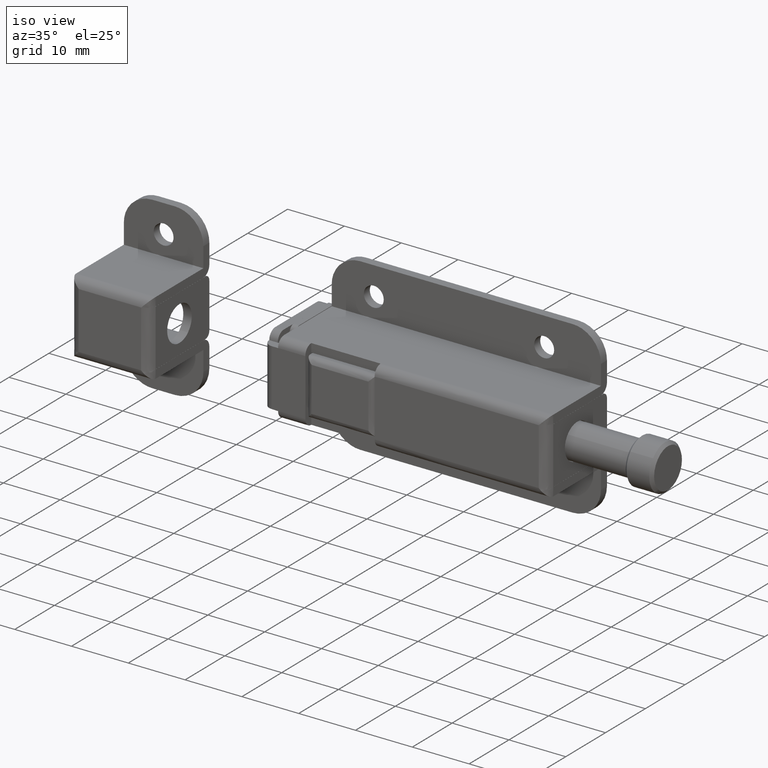
[diagram: clean part render]
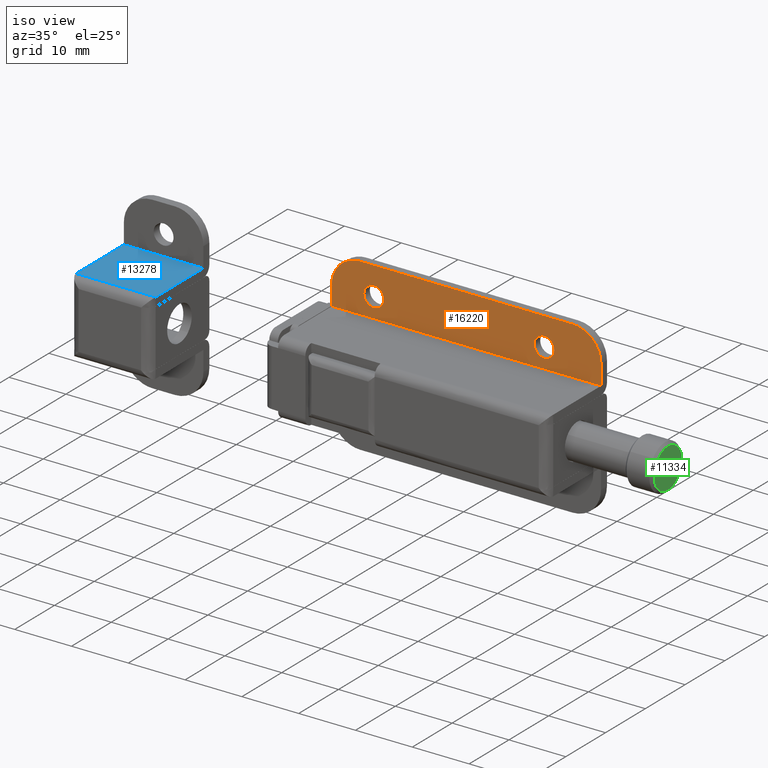
[diagram: same view with three faces highlighted in distinct colors, each labeled with its STEP entity id]
A machine part, iso view with three faces highlighted in distinct colors.
Their STEP definitions:

[orange] entity #16220 — the highlighted face is a freeform B-spline surface patch.
#13947=CARTESIAN_POINT('',(41.336222582549269,6.0,11.130048810456721));
#13948=VERTEX_POINT('',#13947);
#13954=CARTESIAN_POINT('',(40.0,6.0,11.750000000000000));
#13955=VERTEX_POINT('',#13954);
#13956=CARTESIAN_POINT('',(41.336222582549269,6.0,11.130048810456721));
#13957=CARTESIAN_POINT('',(41.183010503327282,6.000000000000007,11.311666530619711));
#13958=CARTESIAN_POINT('',(40.864713795496947,6.000000000000011,11.560719291350770));
#13959=CARTESIAN_POINT('',(40.380105216657689,5.999999999999993,11.724367188343470));
#13960=CARTESIAN_POINT('',(40.110859515660479,6.000000000000005,11.750002595390329));
#13961=CARTESIAN_POINT('',(40.0,6.0,11.750000000000000));
#13962=B_SPLINE_CURVE_WITH_KNOTS('',3,(#13956,#13957,#13958,#13959,#13960,#13961),.UNSPECIFIED.,.F.,.U.,(4,1,1,4),(0.000000017648177,0.712711155485940,1.187851294554508,1.520449608499753),.UNSPECIFIED.);
#13963=EDGE_CURVE('',#13948,#13955,#13962,.T.);
#13965=CARTESIAN_POINT('',(38.250000000000469,6.000000000000001,9.999998720376453));
#13966=VERTEX_POINT('',#13965);
#13967=CARTESIAN_POINT('',(40.0,6.0,11.750000000000000));
#13968=CARTESIAN_POINT('',(39.770879400451769,5.999999999999996,11.750253951662341));
#13969=CARTESIAN_POINT('',(39.413153448192674,6.000000000000004,11.678667294518750));
#13970=CARTESIAN_POINT('',(38.996729374777111,5.999999999999990,11.449386379077030));
#13971=CARTESIAN_POINT('',(38.702591511263101,6.000000000000013,11.195691623263180));
#13972=CARTESIAN_POINT('',(38.479181330305160,5.999999999999987,10.894447929804850));
#13973=CARTESIAN_POINT('',(38.298436537821438,6.000000000000014,10.486719330178440));
#13974=CARTESIAN_POINT('',(38.249903866427140,5.999999999999999,10.186135165694930));
#13975=CARTESIAN_POINT('',(38.250000000000469,6.000000000000001,9.999998720376453));
#13976=B_SPLINE_CURVE_WITH_KNOTS('',3,(#13967,#13968,#13969,#13970,#13971,#13972,#13973,#13974,#13975),.UNSPECIFIED.,.F.,.U.,(4,1,1,1,1,1,4),(0.000000069941797,0.687241231904349,1.073831523810168,1.417426327827615,1.846958785914374,2.190584153080336,2.748963273822484),.UNSPECIFIED.);
#13977=EDGE_CURVE('',#13955,#13966,#13976,.T.);
#13979=CARTESIAN_POINT('',(40.0,6.0,8.250000000000000));
#13980=VERTEX_POINT('',#13979);
#13981=CARTESIAN_POINT('',(38.250000000000469,6.000000000000001,9.999998720376453));
#13982=CARTESIAN_POINT('',(38.249775148579687,5.999999999999997,9.770884047734940));
#13983=CARTESIAN_POINT('',(38.321302274499388,6.000000000000020,9.413144757958509));
#13984=CARTESIAN_POINT('',(38.550624286815882,5.999999999999981,8.996735366938244));
#13985=CARTESIAN_POINT('',(38.823074672664639,6.000000000000020,8.680773330325925));
#13986=CARTESIAN_POINT('',(39.189889609381503,5.999999999999992,8.422427130466819));
#13987=CARTESIAN_POINT('',(39.613431779537308,5.999999999999996,8.276754613232139));
#13988=CARTESIAN_POINT('',(39.885469857639528,6.000000000000003,8.249998015263472));
#13989=CARTESIAN_POINT('',(40.0,6.0,8.250000000000000));
#13990=B_SPLINE_CURVE_WITH_KNOTS('',3,(#13981,#13982,#13983,#13984,#13985,#13986,#13987,#13988,#13989),.UNSPECIFIED.,.F.,.U.,(4,1,1,1,1,1,4),(0.000000071699021,0.687240872751831,1.073830961635759,1.417425587328039,1.932859780036342,2.405355436992397,2.748961831352450),.UNSPECIFIED.);
#13991=EDGE_CURVE('',#13966,#13980,#13990,.T.);
#13993=CARTESIAN_POINT('',(41.204620332205792,6.0,8.730595124832032));
#13994=VERTEX_POINT('',#13993);
#13995=CARTESIAN_POINT('',(40.0,6.0,8.250000000000000));
#13996=CARTESIAN_POINT('',(40.207621103473713,6.000000000000004,8.249840224390338));
#13997=CARTESIAN_POINT('',(40.650375115564337,5.999999999999997,8.329770425132979));
#13998=CARTESIAN_POINT('',(41.034107416705737,5.999999999999998,8.568423428488401));
#13999=CARTESIAN_POINT('',(41.204620332205792,6.0,8.730595124832032));
#14000=B_SPLINE_CURVE_WITH_KNOTS('',3,(#13995,#13996,#13997,#13998,#13999),.UNSPECIFIED.,.F.,.U.,(4,1,4),(0.000000025852564,0.622816670297067,1.328662988556845),.UNSPECIFIED.);
#14001=EDGE_CURVE('',#13980,#13994,#14000,.T.);
#14083=CARTESIAN_POINT('',(41.749999999999531,6.0,10.000001279623559));
#14084=VERTEX_POINT('',#14083);
#14085=CARTESIAN_POINT('',(41.204620332205792,6.0,8.730595124832032));
#14086=CARTESIAN_POINT('',(41.344223754087693,6.000000000000012,8.862910805507164));
#14087=CARTESIAN_POINT('',(41.560944390001353,5.999999999999983,9.150244540262392));
#14088=CARTESIAN_POINT('',(41.721417940950701,6.000000000000008,9.600549502181677));
#14089=CARTESIAN_POINT('',(41.750010027117597,5.999999999999990,9.881646823982605));
#14090=CARTESIAN_POINT('',(41.749999999999531,6.0,10.000001279623559));
#14091=B_SPLINE_CURVE_WITH_KNOTS('',3,(#14085,#14086,#14087,#14088,#14089,#14090),.UNSPECIFIED.,.F.,.U.,(4,1,1,4),(0.000000022450919,0.577003454562035,1.065225622085096,1.420300821996843),.UNSPECIFIED.);
#14092=EDGE_CURVE('',#13994,#14084,#14091,.T.);
#14094=CARTESIAN_POINT('',(41.749999999999531,6.0,10.000001279623559));
#14095=CARTESIAN_POINT('',(41.750310895364990,5.999999999999996,10.243195950064321));
#14096=CARTESIAN_POINT('',(41.663201218482627,6.000000000000017,10.652395721936530));
#14097=CARTESIAN_POINT('',(41.443676585879913,5.999999999999991,11.003050985330781));
#14098=CARTESIAN_POINT('',(41.336222582549269,6.0,11.130048810456721));
#14099=B_SPLINE_CURVE_WITH_KNOTS('',3,(#14094,#14095,#14096,#14097,#14098),.UNSPECIFIED.,.F.,.U.,(4,1,4),(0.000000025065080,0.729421768094627,1.228514243841396),.UNSPECIFIED.);
#14100=EDGE_CURVE('',#14084,#13948,#14099,.T.);
#14345=CARTESIAN_POINT('',(11.336222582549270,6.0,11.130048810456730));
#14346=VERTEX_POINT('',#14345);
#14352=CARTESIAN_POINT('',(10.0,6.0,11.750000000000000));
#14353=VERTEX_POINT('',#14352);
#14354=CARTESIAN_POINT('',(11.336222582549270,6.0,11.130048810456730));
#14355=CARTESIAN_POINT('',(11.183009966306200,5.999999999999994,11.311680519214040));
#14356=CARTESIAN_POINT('',(10.890176466098479,6.000000000000028,11.540759534762710));
#14357=CARTESIAN_POINT('',(10.411754446600799,5.999999999999958,11.716912405110479));
#14358=CARTESIAN_POINT('',(10.142541706738040,6.000000000000041,11.750035274573991));
#14359=CARTESIAN_POINT('',(10.0,6.0,11.750000000000000));
#14360=B_SPLINE_CURVE_WITH_KNOTS('',3,(#14354,#14355,#14356,#14357,#14358,#14359),.UNSPECIFIED.,.F.,.U.,(4,1,1,4),(0.000000017648344,0.712711155485904,1.092823127026107,1.520449608499746),.UNSPECIFIED.);
#14361=EDGE_CURVE('',#14346,#14353,#14360,.T.);
#14363=CARTESIAN_POINT('',(8.250000000000467,6.000000000000001,9.999998720376453));
#14364=VERTEX_POINT('',#14363);
#14365=CARTESIAN_POINT('',(10.0,6.0,11.750000000000000));
#14366=CARTESIAN_POINT('',(9.770875169721485,5.999999999999989,11.750255611336080));
#14367=CARTESIAN_POINT('',(9.441782206943534,6.000000000000023,11.684389557883661));
#14368=CARTESIAN_POINT('',(9.046378120856375,5.999999999999977,11.479155683399540));
#14369=CARTESIAN_POINT('',(8.762818602632533,6.000000000000020,11.257915707621560));
#14370=CARTESIAN_POINT('',(8.524904500599288,5.999999999999989,10.967990172980009));
#14371=CARTESIAN_POINT('',(8.311428564575913,6.000000000000012,10.543931034716570));
#14372=CARTESIAN_POINT('',(8.249790623372338,5.999999999999990,10.214791244027291));
#14373=CARTESIAN_POINT('',(8.250000000000467,6.000000000000001,9.999998720376453));
#14374=B_SPLINE_CURVE_WITH_KNOTS('',3,(#14365,#14366,#14367,#14368,#14369,#14370,#14371,#14372,#14373),.UNSPECIFIED.,.F.,.U.,(4,1,1,1,1,1,4),(0.000000069947586,0.687241231909096,0.987919667438957,1.331536411484719,1.761045047416932,2.104677139526770,2.748963273822415),.UNSPECIFIED.);
#14375=EDGE_CURVE('',#14353,#14364,#14374,.T.);
#14377=CARTESIAN_POINT('',(10.0,6.0,8.250000000000000));
#14378=VERTEX_POINT('',#14377);
#14379=CARTESIAN_POINT('',(8.250000000000467,6.000000000000001,9.999998720376453));
#14380=CARTESIAN_POINT('',(8.249929816425347,5.999999999999994,9.828185982286218));
#14381=CARTESIAN_POINT('',(8.292519724569305,6.000000000000016,9.541890426348772));
#14382=CARTESIAN_POINT('',(8.452190076471108,5.999999999999985,9.156436607366043));
#14383=CARTESIAN_POINT('',(8.655914176289951,6.000000000000012,8.859493216777729));
#14384=CARTESIAN_POINT('',(8.916401773554082,5.999999999999998,8.611498689194534));
#14385=CARTESIAN_POINT('',(9.208098835715539,6.000000000000009,8.426781478887794));
#14386=CARTESIAN_POINT('',(9.570509909819805,5.999999999999990,8.286981672077742));
#14387=CARTESIAN_POINT('',(9.842505756534608,6.000000000000018,8.249945233831003));
#14388=CARTESIAN_POINT('',(10.0,6.0,8.250000000000000));
#14389=B_SPLINE_CURVE_WITH_KNOTS('',3,(#14379,#14380,#14381,#14382,#14383,#14384,#14385,#14386,#14387,#14388),.UNSPECIFIED.,.F.,.U.,(4,1,1,1,1,1,1,4),(0.000000071701315,0.515425496995952,0.859051555617703,1.245640523829091,1.589222552985501,1.932859780036468,2.276484966880440,2.748961831352451),.UNSPECIFIED.);
#14390=EDGE_CURVE('',#14364,#14378,#14389,.T.);
#14392=CARTESIAN_POINT('',(11.204620332205780,6.0,8.730595124832032));
#14393=VERTEX_POINT('',#14392);
#14394=CARTESIAN_POINT('',(10.0,6.0,8.250000000000000));
#14395=CARTESIAN_POINT('',(10.179927070913809,6.000000000000006,8.249926494545763));
#14396=CARTESIAN_POINT('',(10.498203496025591,5.999999999999966,8.299515932042977));
#14397=CARTESIAN_POINT('',(10.904130197385911,6.000000000000052,8.484294000236890));
#14398=CARTESIAN_POINT('',(11.114279009616769,5.999999999999954,8.644841731697374));
#14399=CARTESIAN_POINT('',(11.204620332205780,6.0,8.730595124832032));
#14400=B_SPLINE_CURVE_WITH_KNOTS('',3,(#14394,#14395,#14396,#14397,#14398,#14399),.UNSPECIFIED.,.F.,.U.,(4,1,1,4),(0.000000025853150,0.539778421655036,0.954975911589435,1.328662988556844),.UNSPECIFIED.);
#14401=EDGE_CURVE('',#14378,#14393,#14400,.T.);
#14485=CARTESIAN_POINT('',(11.749999999999529,6.0,10.000001279623559));
#14486=VERTEX_POINT('',#14485);
#14487=CARTESIAN_POINT('',(11.204620332205780,6.0,8.730595124832032));
#14488=CARTESIAN_POINT('',(11.322714778741730,6.000000000000004,8.842578243314287));
#14489=CARTESIAN_POINT('',(11.499348277140900,5.999999999999991,9.064745148914316));
#14490=CARTESIAN_POINT('',(11.698229650304000,6.000000000000009,9.497063275635417));
#14491=CARTESIAN_POINT('',(11.750132639814970,5.999999999999993,9.807651979494922));
#14492=CARTESIAN_POINT('',(11.749999999999529,6.0,10.000001279623559));
#14493=B_SPLINE_CURVE_WITH_KNOTS('',3,(#14487,#14488,#14489,#14490,#14491,#14492),.UNSPECIFIED.,.F.,.U.,(4,1,1,4),(0.000000022451671,0.488233865736188,0.843297389880575,1.420300821996829),.UNSPECIFIED.);
#14494=EDGE_CURVE('',#14393,#14486,#14493,.T.);
#14496=CARTESIAN_POINT('',(11.749999999999529,6.0,10.000001279623559));
#14497=CARTESIAN_POINT('',(11.750108039458921,6.0,10.191968762881119));
#14498=CARTESIAN_POINT('',(11.681919857632050,5.999999999999991,10.601376723866361));
#14499=CARTESIAN_POINT('',(11.476873154276250,6.000000000000011,10.964053665981590));
#14500=CARTESIAN_POINT('',(11.336222582549270,6.0,11.130048810456730));
#14501=B_SPLINE_CURVE_WITH_KNOTS('',3,(#14496,#14497,#14498,#14499,#14500),.UNSPECIFIED.,.F.,.U.,(4,1,4),(0.000000025065037,0.575873664766638,1.228514243841405),.UNSPECIFIED.);
#14502=EDGE_CURVE('',#14486,#14346,#14501,.T.);
#15625=CARTESIAN_POINT('',(7.600000000000000,6.0,15.0));
#15626=VERTEX_POINT('',#15625);
#15627=CARTESIAN_POINT('',(2.600000000000000,6.0,10.0));
#15628=VERTEX_POINT('',#15627);
#15629=CARTESIAN_POINT('',(7.600000000000000,6.0,15.0));
#15630=CARTESIAN_POINT('',(7.272749488972025,6.000000000000012,15.000036814036861));
#15631=CARTESIAN_POINT('',(6.638718759804812,5.999999999999978,14.937535343246010));
#15632=CARTESIAN_POINT('',(5.811667376513340,6.000000000000036,14.692185634032700));
#15633=CARTESIAN_POINT('',(5.035600435442685,5.999999999999941,14.319288213401769));
#15634=CARTESIAN_POINT('',(4.380302608358585,6.000000000000052,13.857779273653129));
#15635=CARTESIAN_POINT('',(3.713199919702195,5.999999999999967,13.190697802178070));
#15636=CARTESIAN_POINT('',(3.259176628763556,6.000000000000017,12.528960083568320));
#15637=CARTESIAN_POINT('',(2.904787512169968,5.999999999999989,11.767507217138879));
#15638=CARTESIAN_POINT('',(2.666408194419299,6.000000000000008,10.981723545872841));
#15639=CARTESIAN_POINT('',(2.599949175235484,6.000000000000012,10.347702229106090));
#15640=CARTESIAN_POINT('',(2.600000000000000,6.0,10.0));
#15641=B_SPLINE_CURVE_WITH_KNOTS('',3,(#15629,#15630,#15631,#15632,#15633,#15634,#15635,#15636,#15637,#15638,#15639,#15640),.UNSPECIFIED.,.F.,.U.,(4,1,1,1,1,1,1,1,1,4),(0.000000063719962,0.981750066922377,1.902148073985184,2.577114731684012,3.558884099570372,4.295148433494637,5.399645182272292,5.951884181679819,6.810931104568613,7.854030914378182),.UNSPECIFIED.);
#15642=EDGE_CURVE('',#15626,#15628,#15641,.T.);
#15690=CARTESIAN_POINT('',(50.0,6.0,10.0));
#15691=VERTEX_POINT('',#15690);
#15692=CARTESIAN_POINT('',(45.0,6.0,15.0));
#15693=VERTEX_POINT('',#15692);
#15694=CARTESIAN_POINT('',(50.0,6.0,10.0));
#15695=CARTESIAN_POINT('',(50.000020385975617,6.000000000000002,10.286336571161611));
#15696=CARTESIAN_POINT('',(49.945409802842683,5.999999999999999,10.920384459790920));
#15697=CARTESIAN_POINT('',(49.709974988506993,6.000000000000012,11.751381132821519));
#15698=CARTESIAN_POINT('',(49.354779779464280,5.999999999999956,12.490474139529409));
#15699=CARTESIAN_POINT('',(48.967392645581178,6.000000000000036,13.070242655351500));
#15700=CARTESIAN_POINT('',(48.420489924448127,6.0,13.681209525709960));
#15701=CARTESIAN_POINT('',(47.807412509874077,5.999999999999989,14.165746056622700));
#15702=CARTESIAN_POINT('',(47.089293402091599,6.000000000000041,14.560939360951600));
#15703=CARTESIAN_POINT('',(46.206646432814310,5.999999999999926,14.895301397606550));
#15704=CARTESIAN_POINT('',(45.470442076710597,6.000000000000078,15.000175427271190));
#15705=CARTESIAN_POINT('',(45.0,6.0,15.0));
#15706=B_SPLINE_CURVE_WITH_KNOTS('',3,(#15694,#15695,#15696,#15697,#15698,#15699,#15700,#15701,#15702,#15703,#15704,#15705),.UNSPECIFIED.,.F.,.U.,(4,1,1,1,1,1,1,1,1,4),(0.000000063711205,0.859016491897675,1.902148073978747,2.577114731678369,3.313441434116948,3.988353926503718,5.031475522849473,5.645085378029295,6.442761671478028,7.854030914378215),.UNSPECIFIED.);
#15707=EDGE_CURVE('',#15691,#15693,#15706,.T.);
#16164=CARTESIAN_POINT('',(7.600000000000000,6.0,15.0));
#16165=CARTESIAN_POINT('',(45.0,6.0,15.0));
#16166=QUASI_UNIFORM_CURVE('',1,(#16164,#16165),.UNSPECIFIED.,.F.,.U.);
#16167=EDGE_CURVE('',#15626,#15693,#16166,.T.);
#16175=CARTESIAN_POINT('',(0.232369646913111,6.0,6.075425016474648));
#16176=CARTESIAN_POINT('',(0.232369646913111,6.0,15.424575211513121));
#16177=CARTESIAN_POINT('',(52.367631200664938,6.0,6.075425016474648));
#16178=CARTESIAN_POINT('',(52.367631200664938,6.0,15.424575211513121));
#16179=B_SPLINE_SURFACE_WITH_KNOTS('',1,1,((#16175,#16177),(#16176,#16178)),.UNSPECIFIED.,.F.,.F.,.U.,(2,2),(2,2),(0.0,9.349150195038469),(0.0,52.135261553751832),.UNSPECIFIED.);
#16180=CARTESIAN_POINT('',(50.0,6.0,6.500000000000000));
#16181=VERTEX_POINT('',#16180);
#16182=CARTESIAN_POINT('',(50.0,6.0,6.500000000000000));
#16183=CARTESIAN_POINT('',(50.0,6.0,10.0));
#16184=QUASI_UNIFORM_CURVE('',1,(#16182,#16183),.UNSPECIFIED.,.F.,.U.);
#16185=EDGE_CURVE('',#16181,#15691,#16184,.T.);
#16186=ORIENTED_EDGE('',*,*,#16185,.T.);
#16187=ORIENTED_EDGE('',*,*,#15707,.T.);
#16188=ORIENTED_EDGE('',*,*,#16167,.F.);
#16189=ORIENTED_EDGE('',*,*,#15642,.T.);
#16190=CARTESIAN_POINT('',(2.600000000000045,6.0,6.500000000000000));
#16191=VERTEX_POINT('',#16190);
#16192=CARTESIAN_POINT('',(2.600000000000045,6.0,6.500000000000000));
#16193=CARTESIAN_POINT('',(2.600000000000000,6.0,10.0));
#16194=QUASI_UNIFORM_CURVE('',1,(#16192,#16193),.UNSPECIFIED.,.F.,.U.);
#16195=EDGE_CURVE('',#16191,#15628,#16194,.T.);
#16196=ORIENTED_EDGE('',*,*,#16195,.F.);
#16197=CARTESIAN_POINT('',(2.600000000000045,6.0,6.500000000000000));
#16198=CARTESIAN_POINT('',(50.0,6.0,6.500000000000000));
#16199=QUASI_UNIFORM_CURVE('',1,(#16197,#16198),.UNSPECIFIED.,.F.,.U.);
#16200=EDGE_CURVE('',#16191,#16181,#16199,.T.);
#16201=ORIENTED_EDGE('',*,*,#16200,.T.);
#16202=EDGE_LOOP('',(#16186,#16187,#16188,#16189,#16196,#16201));
#16203=FACE_OUTER_BOUND('',#16202,.T.);
#16204=ORIENTED_EDGE('',*,*,#14375,.F.);
#16205=ORIENTED_EDGE('',*,*,#14361,.F.);
#16206=ORIENTED_EDGE('',*,*,#14502,.F.);
#16207=ORIENTED_EDGE('',*,*,#14494,.F.);
#16208=ORIENTED_EDGE('',*,*,#14401,.F.);
#16209=ORIENTED_EDGE('',*,*,#14390,.F.);
#16210=EDGE_LOOP('',(#16204,#16205,#16206,#16207,#16208,#16209));
#16211=FACE_BOUND('',#16210,.T.);
#16212=ORIENTED_EDGE('',*,*,#13977,.F.);
#16213=ORIENTED_EDGE('',*,*,#13963,.F.);
#16214=ORIENTED_EDGE('',*,*,#14100,.F.);
#16215=ORIENTED_EDGE('',*,*,#14092,.F.);
#16216=ORIENTED_EDGE('',*,*,#14001,.F.);
#16217=ORIENTED_EDGE('',*,*,#13991,.F.);
#16218=EDGE_LOOP('',(#16212,#16213,#16214,#16215,#16216,#16217));
#16219=FACE_BOUND('',#16218,.T.);
#16220=ADVANCED_FACE('',(#16203,#16211,#16219),#16179,.F.);

[blue] entity #13278 — the highlighted face is a freeform B-spline surface patch.
#12281=CARTESIAN_POINT('',(0.0,-6.0,6.500000000000000));
#12282=VERTEX_POINT('',#12281);
#12406=CARTESIAN_POINT('',(-14.0,-6.0,6.500000000000000));
#12407=VERTEX_POINT('',#12406);
#12968=CARTESIAN_POINT('',(-14.0,6.0,6.500000000000000));
#12969=VERTEX_POINT('',#12968);
#12970=CARTESIAN_POINT('',(-14.0,6.0,6.500000000000000));
#12971=CARTESIAN_POINT('',(-14.0,-6.0,6.500000000000000));
#12972=QUASI_UNIFORM_CURVE('',1,(#12970,#12971),.UNSPECIFIED.,.F.,.U.);
#12973=EDGE_CURVE('',#12969,#12407,#12972,.T.);
#13246=CARTESIAN_POINT('',(-14.0,-6.0,6.500000000000000));
#13247=CARTESIAN_POINT('',(0.0,-6.0,6.500000000000000));
#13248=QUASI_UNIFORM_CURVE('',1,(#13246,#13247),.UNSPECIFIED.,.F.,.U.);
#13249=EDGE_CURVE('',#12407,#12282,#13248,.T.);
#13257=CARTESIAN_POINT('',(-14.699299972865290,-6.599399976741673,6.500000000000000));
#13258=CARTESIAN_POINT('',(0.699300348374546,-6.599399976741673,6.500000000000000));
#13259=CARTESIAN_POINT('',(-14.699299972865290,6.599400298606755,6.500000000000000));
#13260=CARTESIAN_POINT('',(0.699300348374546,6.599400298606755,6.500000000000000));
#13261=B_SPLINE_SURFACE_WITH_KNOTS('',1,1,((#13257,#13259),(#13258,#13260)),.UNSPECIFIED.,.F.,.F.,.U.,(2,2),(2,2),(0.0,15.398600321239829),(0.0,13.198800275348431),.UNSPECIFIED.);
#13262=CARTESIAN_POINT('',(0.0,6.0,6.500000000000000));
#13263=VERTEX_POINT('',#13262);
#13264=CARTESIAN_POINT('',(0.0,6.0,6.500000000000000));
#13265=CARTESIAN_POINT('',(0.0,-6.0,6.500000000000000));
#13266=QUASI_UNIFORM_CURVE('',1,(#13264,#13265),.UNSPECIFIED.,.F.,.U.);
#13267=EDGE_CURVE('',#13263,#12282,#13266,.T.);
#13268=ORIENTED_EDGE('',*,*,#13267,.F.);
#13269=CARTESIAN_POINT('',(-14.0,6.0,6.500000000000000));
#13270=CARTESIAN_POINT('',(0.0,6.0,6.500000000000000));
#13271=QUASI_UNIFORM_CURVE('',1,(#13269,#13270),.UNSPECIFIED.,.F.,.U.);
#13272=EDGE_CURVE('',#12969,#13263,#13271,.T.);
#13273=ORIENTED_EDGE('',*,*,#13272,.F.);
#13274=ORIENTED_EDGE('',*,*,#12973,.T.);
#13275=ORIENTED_EDGE('',*,*,#13249,.T.);
#13276=EDGE_LOOP('',(#13268,#13273,#13274,#13275));
#13277=FACE_OUTER_BOUND('',#13276,.T.);
#13278=ADVANCED_FACE('',(#13277),#13261,.T.);

[green] entity #11334 — the highlighted face is a freeform B-spline surface patch.
#10307=CARTESIAN_POINT('',(66.000000112754023,2.260096915907394,2.672444492009421));
#10308=VERTEX_POINT('',#10307);
#10309=CARTESIAN_POINT('',(66.000000000000014,3.499999999999881,-0.000000914728639));
#10310=VERTEX_POINT('',#10309);
#10311=CARTESIAN_POINT('',(66.000000112754023,2.260096915907394,2.672444492009421));
#10312=CARTESIAN_POINT('',(66.000000101974251,2.562596022296766,2.416946614090267));
#10313=CARTESIAN_POINT('',(66.000000078615471,3.027577143029081,1.863306526432310));
#10314=CARTESIAN_POINT('',(66.000000038754891,3.419883455090758,0.918550514276850));
#10315=CARTESIAN_POINT('',(66.000000012696219,3.500069528627459,0.300917259555244));
#10316=CARTESIAN_POINT('',(66.000000000000014,3.499999999999881,-0.000000914728639));
#10317=B_SPLINE_CURVE_WITH_KNOTS('',3,(#10311,#10312,#10313,#10314,#10315,#10316),.UNSPECIFIED.,.F.,.U.,(4,1,1,4),(0.000000027179396,1.187828957604901,2.138080672000506,3.040829794420764),.UNSPECIFIED.);
#10318=EDGE_CURVE('',#10308,#10310,#10317,.T.);
#10320=CARTESIAN_POINT('',(66.0,0.0,-3.500000000000000));
#10321=VERTEX_POINT('',#10320);
#10322=CARTESIAN_POINT('',(66.000000000000014,3.499999999999881,-0.000000914728639));
#10323=CARTESIAN_POINT('',(65.999999999999858,3.500124110295234,-0.329305189375739));
#10324=CARTESIAN_POINT('',(66.000000000000242,3.420600930682209,-0.887606982670403));
#10325=CARTESIAN_POINT('',(65.999999999999886,3.148120716823692,-1.568845260708675));
#10326=CARTESIAN_POINT('',(66.000000000000213,2.846859392656870,-2.057728327436071));
#10327=CARTESIAN_POINT('',(66.000000000000128,2.467918574313994,-2.508111198896360));
#10328=CARTESIAN_POINT('',(66.000000000000426,1.925461188539636,-2.958968485250722));
#10329=CARTESIAN_POINT('',(65.999999999999531,1.087938452835488,-3.380565739438007));
#10330=CARTESIAN_POINT('',(66.000000000000611,0.400922201093111,-3.500300134870414));
#10331=CARTESIAN_POINT('',(66.0,0.0,-3.500000000000000));
#10332=B_SPLINE_CURVE_WITH_KNOTS('',3,(#10322,#10323,#10324,#10325,#10326,#10327,#10328,#10329,#10330,#10331),.UNSPECIFIED.,.F.,.U.,(4,1,1,1,1,1,1,4),(0.000000088690523,0.987881368160739,1.675122720210992,2.190556927930575,2.705984866462419,3.436123706570716,4.295173371083495,5.497821124509400),.UNSPECIFIED.);
#10333=EDGE_CURVE('',#10310,#10321,#10332,.T.);
#10335=CARTESIAN_POINT('',(66.000000114184388,-2.409240779130103,-2.538810050063717));
#10336=VERTEX_POINT('',#10335);
#10337=CARTESIAN_POINT('',(66.0,0.0,-3.500000000000000));
#10338=CARTESIAN_POINT('',(66.000000017711827,-0.373709815563569,-3.500216429541817));
#10339=CARTESIAN_POINT('',(66.000000046565603,-0.982516451049300,-3.401505830293103));
#10340=CARTESIAN_POINT('',(66.000000085072628,-1.794989705178577,-3.037510342752708));
#10341=CARTESIAN_POINT('',(66.000000104669979,-2.208496968435469,-2.729397103387456));
#10342=CARTESIAN_POINT('',(66.000000114184388,-2.409240779130103,-2.538810050063717));
#10343=B_SPLINE_CURVE_WITH_KNOTS('',3,(#10337,#10338,#10339,#10340,#10341,#10342),.UNSPECIFIED.,.F.,.U.,(4,1,1,4),(0.000000020761007,1.121044366815980,1.826875702812218,2.657279236346222),.UNSPECIFIED.);
#10344=EDGE_CURVE('',#10321,#10336,#10343,.T.);
#10419=CARTESIAN_POINT('',(66.0,0.0,3.500000000000000));
#10420=VERTEX_POINT('',#10419);
#10421=CARTESIAN_POINT('',(66.0,0.0,3.500000000000000));
#10422=CARTESIAN_POINT('',(66.000000010214833,0.204748694795161,3.500016588584212));
#10423=CARTESIAN_POINT('',(66.000000031920266,0.639827902848969,3.461709841152799));
#10424=CARTESIAN_POINT('',(66.000000071447232,1.432120603134794,3.238956289953134));
#10425=CARTESIAN_POINT('',(66.000000098135757,1.967082644000860,2.920534569863990));
#10426=CARTESIAN_POINT('',(66.000000112754023,2.260096915907394,2.672444492009421));
#10427=B_SPLINE_CURVE_WITH_KNOTS('',3,(#10421,#10422,#10423,#10424,#10425,#10426),.UNSPECIFIED.,.F.,.U.,(4,1,1,4),(0.000000017964932,0.614248428861296,1.305272318205880,2.456993661552639),.UNSPECIFIED.);
#10428=EDGE_CURVE('',#10420,#10308,#10427,.T.);
#10475=CARTESIAN_POINT('',(66.0,-3.499999999999880,0.000000914728660));
#10476=VERTEX_POINT('',#10475);
#10477=CARTESIAN_POINT('',(66.000000114184388,-2.409240779130103,-2.538810050063717));
#10478=CARTESIAN_POINT('',(66.000000101825833,-2.699213614225463,-2.264024784583387));
#10479=CARTESIAN_POINT('',(66.000000077451318,-3.102459260620311,-1.722075928047539));
#10480=CARTESIAN_POINT('',(66.000000037260179,-3.433688627765723,-0.828453788141366));
#10481=CARTESIAN_POINT('',(66.000000012642573,-3.500069894855177,-0.281099789260454));
#10482=CARTESIAN_POINT('',(66.0,-3.499999999999880,0.000000914728660));
#10483=B_SPLINE_CURVE_WITH_KNOTS('',3,(#10477,#10478,#10479,#10480,#10481,#10482),.UNSPECIFIED.,.F.,.U.,(4,1,1,4),(0.000000025464017,1.198363464289368,1.997253757528245,2.840543164354881),.UNSPECIFIED.);
#10484=EDGE_CURVE('',#10336,#10476,#10483,.T.);
#10486=CARTESIAN_POINT('',(66.0,-3.499999999999880,0.000000914728660));
#10487=CARTESIAN_POINT('',(66.000000000000341,-3.500054742220508,0.272029972706624));
#10488=CARTESIAN_POINT('',(65.999999999999702,-3.442958364947095,0.758789624008318));
#10489=CARTESIAN_POINT('',(66.000000000000242,-3.208672876902191,1.453634428040159));
#10490=CARTESIAN_POINT('',(65.999999999999844,-2.828599718266083,2.115181244539012));
#10491=CARTESIAN_POINT('',(66.000000000000099,-2.324214471697584,2.651498808612845));
#10492=CARTESIAN_POINT('',(66.000000000000384,-1.675549951347329,3.102388579859858));
#10493=CARTESIAN_POINT('',(65.999999999998465,-0.930589477427498,3.416356406543010));
#10494=CARTESIAN_POINT('',(66.000000000000725,-0.314982827698545,3.500099616072683));
#10495=CARTESIAN_POINT('',(66.0,0.0,3.500000000000000));
#10496=B_SPLINE_CURVE_WITH_KNOTS('',3,(#10486,#10487,#10488,#10489,#10490,#10491,#10492,#10493,#10494,#10495),.UNSPECIFIED.,.F.,.U.,(4,1,1,1,1,1,1,4),(0.000000088692110,0.816081295216724,1.460361132647988,2.190556927931572,3.092508784620558,3.650885688451728,4.552888719002466,5.497821124509375),.UNSPECIFIED.);
#10497=EDGE_CURVE('',#10476,#10420,#10496,.T.);
#11321=CARTESIAN_POINT('',(66.0,-3.849649986432509,-3.849649986432642));
#11322=CARTESIAN_POINT('',(66.0,-3.849649986432509,3.849650174187273));
#11323=CARTESIAN_POINT('',(66.0,3.849650174187142,-3.849649986432642));
#11324=CARTESIAN_POINT('',(66.0,3.849650174187142,3.849650174187273));
#11325=B_SPLINE_SURFACE_WITH_KNOTS('',1,1,((#11321,#11323),(#11322,#11324)),.UNSPECIFIED.,.F.,.F.,.U.,(2,2),(2,2),(0.0,7.699300160619915),(0.0,7.699300160619650),.UNSPECIFIED.);
#11326=ORIENTED_EDGE('',*,*,#10497,.F.);
#11327=ORIENTED_EDGE('',*,*,#10484,.F.);
#11328=ORIENTED_EDGE('',*,*,#10344,.F.);
#11329=ORIENTED_EDGE('',*,*,#10333,.F.);
#11330=ORIENTED_EDGE('',*,*,#10318,.F.);
#11331=ORIENTED_EDGE('',*,*,#10428,.F.);
#11332=EDGE_LOOP('',(#11326,#11327,#11328,#11329,#11330,#11331));
#11333=FACE_OUTER_BOUND('',#11332,.T.);
#11334=ADVANCED_FACE('',(#11333),#11325,.F.);